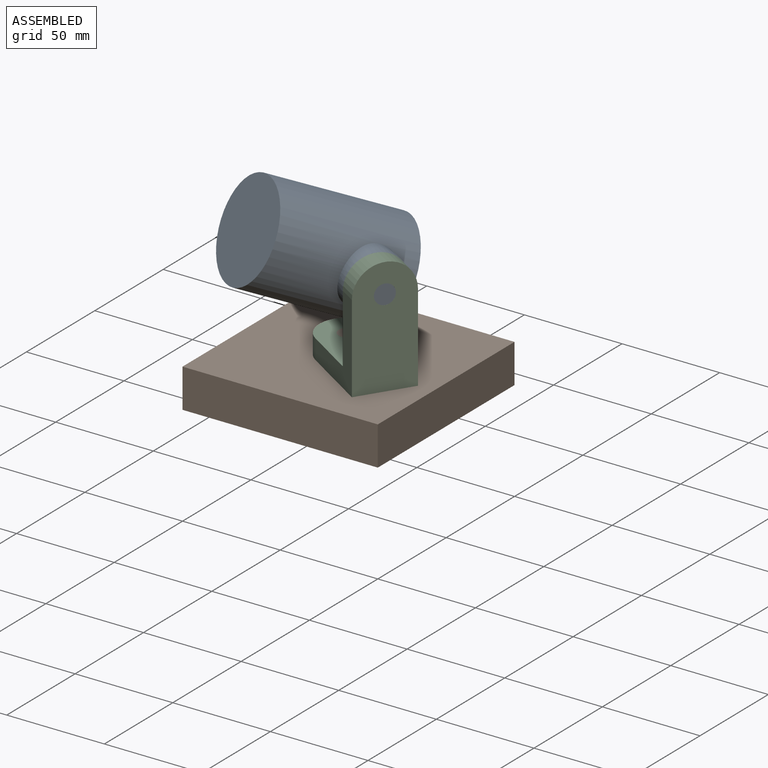
[diagram: assembled view]
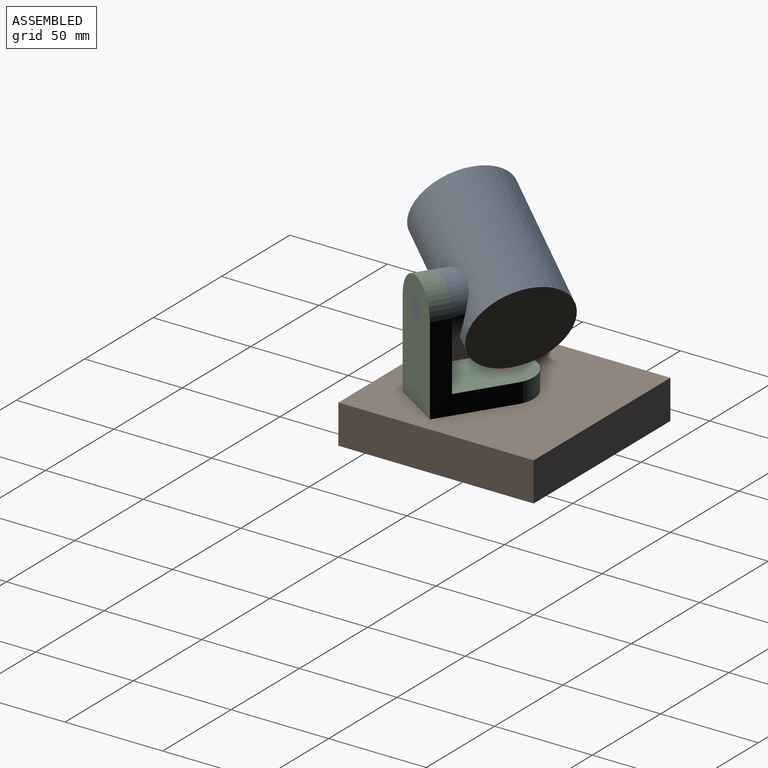
[diagram: assembled view, second angle]
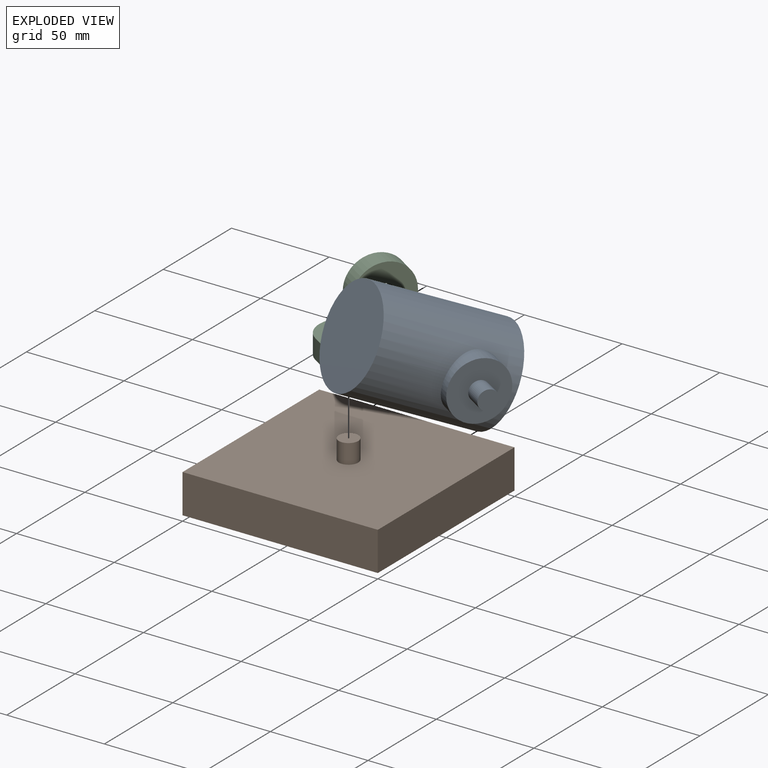
[diagram: exploded view]
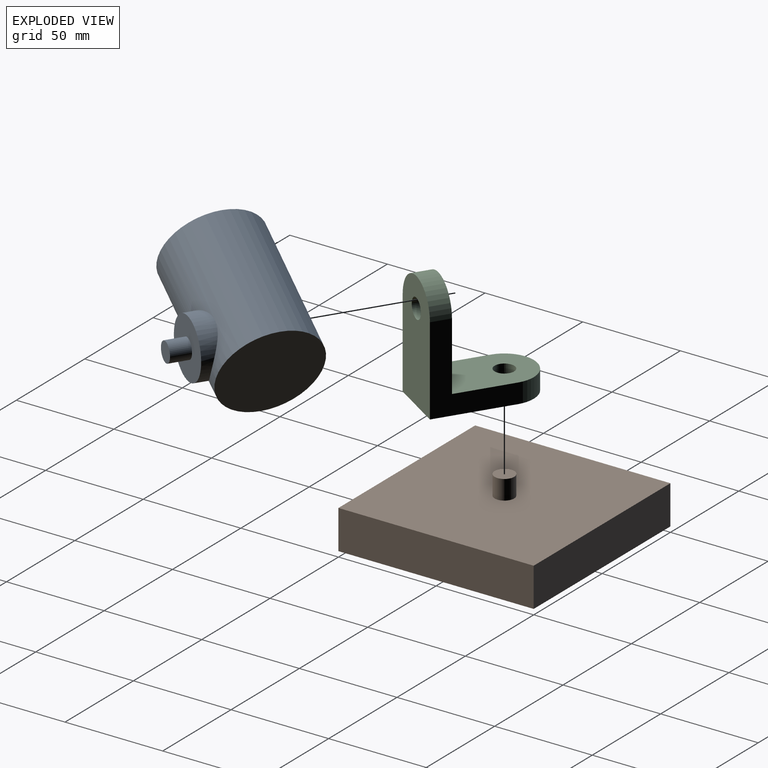
[diagram: exploded view, second angle]
ASSEMBLY  parts=3 mates=2
PART A: 7 faces, bbox 65x70x50 mm
  f0: cylinder r=25mm len=70mm, axis (0,1,0), area 10249.6mm2, adj f1,f2,f4
  f1: plane 50x50mm, normal (0,-1,0), area 1963.5mm2, adj f0
  f2: plane 50x50mm, normal (0,1,0), area 1963.5mm2, adj f0
  f3: plane 30x30mm, normal (1,0,0), area 628.3mm2, adj f4,f6
  f4: cylinder r=15mm len=30mm, axis (1,0,0), area 700.4mm2, adj f0,f3
  f5: plane 10x10mm, normal (1,0,0), area 78.5mm2, adj f6
  f6: cylinder r=5mm len=10mm, axis (-1,0,0), area 314.2mm2, adj f3,f5
PART B: 8 faces, bbox 100x100x30 mm
  f0: plane 100x20mm, normal (0,-1,0), area 2000mm2, adj f1,f3,f4,f5
  f1: plane 100x20mm, normal (1,0,0), area 2000mm2, adj f0,f2,f4,f5
  f2: plane 100x20mm, normal (0,1,0), area 2000mm2, adj f1,f3,f4,f5
  f3: plane 100x20mm, normal (-1,0,0), area 2000mm2, adj f0,f2,f4,f5
  f4: plane 100x100mm, normal (0,0,-1), area 10000mm2, adj f0,f1,f2,f3
  f5: plane 100x100mm, normal (0,0,1), area 9921.5mm2, adj f0,f1,f2,f3,f6
  f6: cylinder r=5mm len=10mm, axis (0,0,-1), area 314.2mm2, adj f5,f7
  f7: plane 10x10mm, normal (0,0,1), area 78.5mm2, adj f6
PART C: 10 faces, bbox 55x30x60 mm
  f0: plane 45x30mm, normal (0,0,1), area 1174.9mm2, adj f1,f3,f4,f5,f7
  f1: cylinder r=15mm len=30mm, axis (0,0,-1), area 471.2mm2, adj f0,f2,f4,f5
  f2: plane 55x30mm, normal (0,0,-1), area 1474.9mm2, adj f1,f3,f4,f5,f6
  f3: cylinder r=5mm len=10mm, axis (0,0,-1), area 314.2mm2, adj f0,f2
  f4: plane 45x40mm, normal (0,-1,0), area 750mm2, adj f0,f1,f2,f6,f7,f8
  f5: plane 45x40mm, normal (0,1,0), area 750mm2, adj f0,f1,f2,f6,f7,f8
  f6: plane 60x30mm, normal (1,0,0), area 1624.9mm2, adj f2,f4,f5,f8,f9
  f7: plane 50x30mm, normal (-1,0,0), area 1324.9mm2, adj f0,f4,f5,f8,f9
  f8: cylinder r=15mm len=30mm, axis (1,0,0), area 471.2mm2, adj f4,f5,f6,f7
  f9: cylinder r=5mm len=10mm, axis (-1,0,0), area 314.2mm2, adj f6,f7
PLACE A rot(axis=(-0.59,0.17,-0.79),40.4deg) t=(-9.98,-15.62,3.99)mm
PLACE B at identity fixed
PLACE C rot(axis=(0,0,-1),32.6deg) t=(0,0,0)mm
MATE revolute B.f6 <-> C.f3  axis (0,0,1) through (0,0,10)mm
MATE revolute A.f6 <-> C.f9  axis (0.84,-0.54,0) through (33.71,-21.53,45)mm
